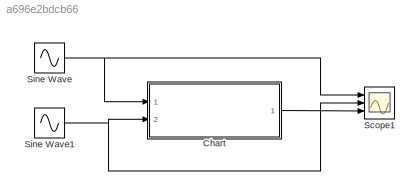
MODEL slx_a696e2bdcb66
KIND model
CONFIG AbsTol = auto
CONFIG FixedStep = 0.01
CONFIG MaxStep = auto
CONFIG MinStep = auto
CONFIG RelTol = 1e-3
CONFIG SampleTimeConstraint = Unconstrained
CONFIG Solver = FixedStepAuto
CONFIG SolverMode = Auto
CONFIG SolverName = FixedStepAuto
CONFIG StartTime = 0.0
CONFIG StopTime = 2
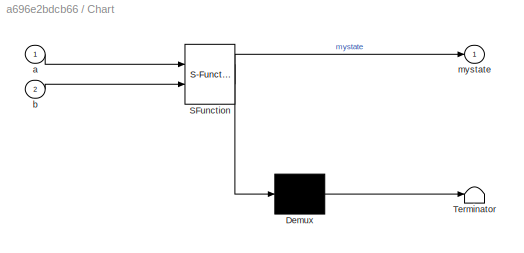
BLOCK [SubSystem] Chart
  ErrorFcn = Stateflow.Translate.translate
  PermitHierarchicalResolution = ExplicitOnly
  Ports = [2, 1]
  RequestExecContextInheritance = off
  SFBlockType = Chart
  TreatAsAtomicUnit = on
  Variant = off
BLOCK [Demux] Chart/ Demux 
  Outputs = 1
  Ports = [1, 1]
BLOCK [S-Function] Chart/ SFunction 
  EnableBusSupport = on
  FunctionName = sf_sfun
  PortCounts = [2 2]
  Ports = [2, 2]
  SFunctionDeploymentMode = off
  Tag = Stateflow S-Function superstate 3
BLOCK [Terminator] Chart/ Terminator 
BLOCK [Inport] Chart/a
  IconDisplay = Port number
BLOCK [Inport] Chart/b
  IconDisplay = Port number
  Port = 2
BLOCK [Outport] Chart/mystate
  IconDisplay = Port number
BLOCK [Scope] Scope1
  NumInputPorts = 3
  Ports = [3]
  ScopeSpecificationString = Simulink.scopes.TimeScopeBlockCfg('CurrentConfiguration', extmgr.ConfigurationSet(extmgr.Configuration('Core','General UI',true),extmgr.Configuration('Core','Source UI',true),extmgr.Configuration('Sources','WiredSimulink',true,'DataLoggingVariableName','ScopeData1'),extmgr.Configuration('Visuals','Time Domain',true,'SerializedDisplays',{struct('MinYLimReal','-1.5','MaxYLimReal','3.5','YLabelReal',...<+1438ch>
BLOCK [Sin] Sine Wave
  Frequency = (3/4)*2*pi
  Ports = [0, 1]
  SampleTime = 0
BLOCK [Sin] Sine Wave1
  Frequency = pi
  Ports = [0, 1]
  SampleTime = 0
LINE Chart:1 -> Scope1:3
NET Sine Wave1:1 -> Chart:2, Scope1:2
NET Sine Wave:1 -> Chart:1, Scope1:1
note: NET lines group one-source signal fan-out (src -> all destinations, sorted); 1:1 wires keep LINE
CHART Chart states=4 transitions=6
  STATE_LABEL 'Normal'
  STATE_LABEL 'BPos\nen:\nmystate = 3'
  STATE_LABEL 'BNeg\nen:\nmystate = 2'
  STATE_LABEL '[b > 0]'
  STATE_LABEL '[b < 0]'
  STATE_LABEL 'BPos\nen:\nmystate = 3'
  STATE_LABEL 'BNeg\nen:\nmystate = 2'
  STATE_LABEL 'ANegPeak\nen:\nmystate = 1'
